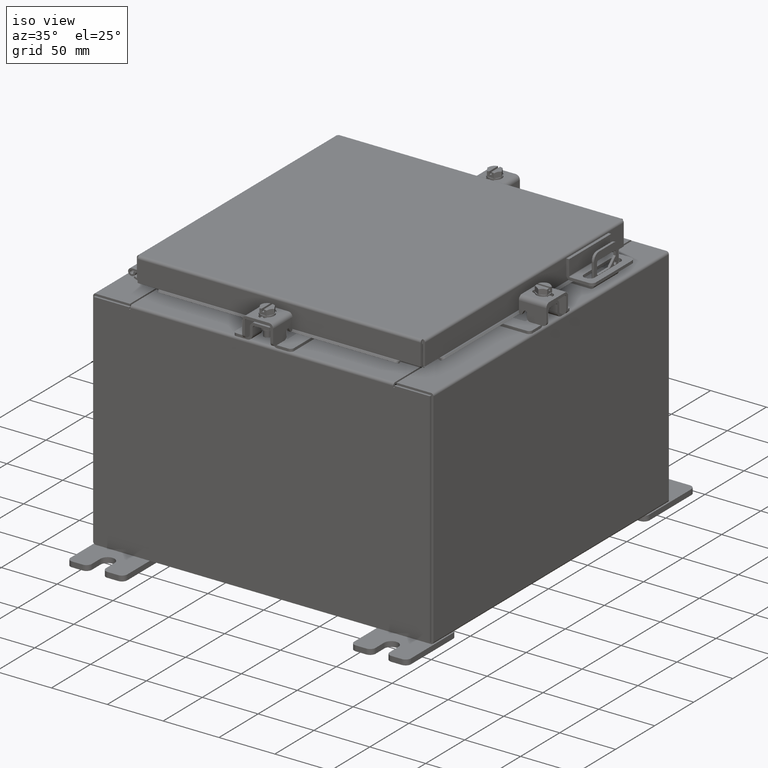
[diagram: clean part render]
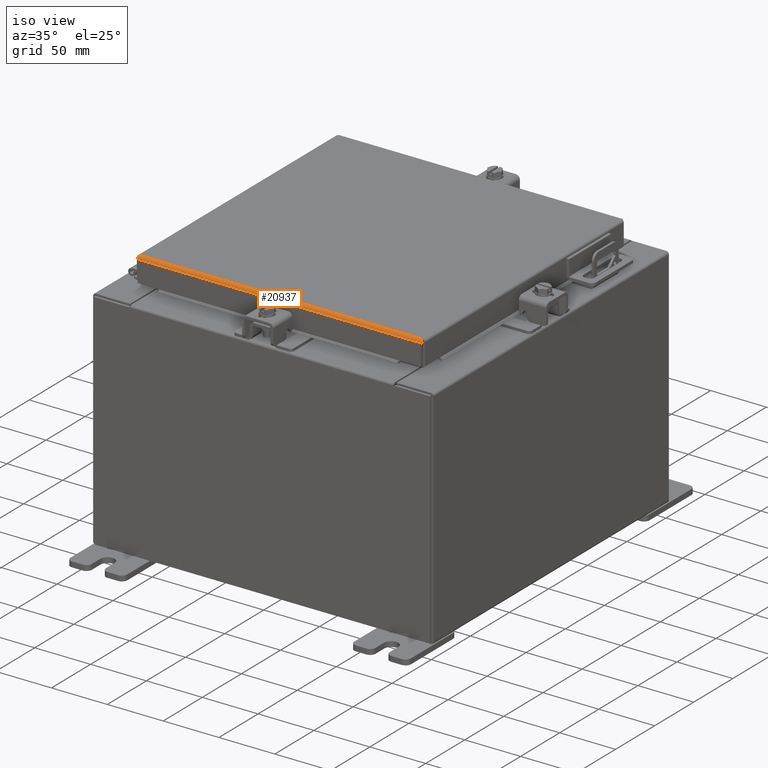
[diagram: same view with one face highlighted and labeled with its STEP entity id]
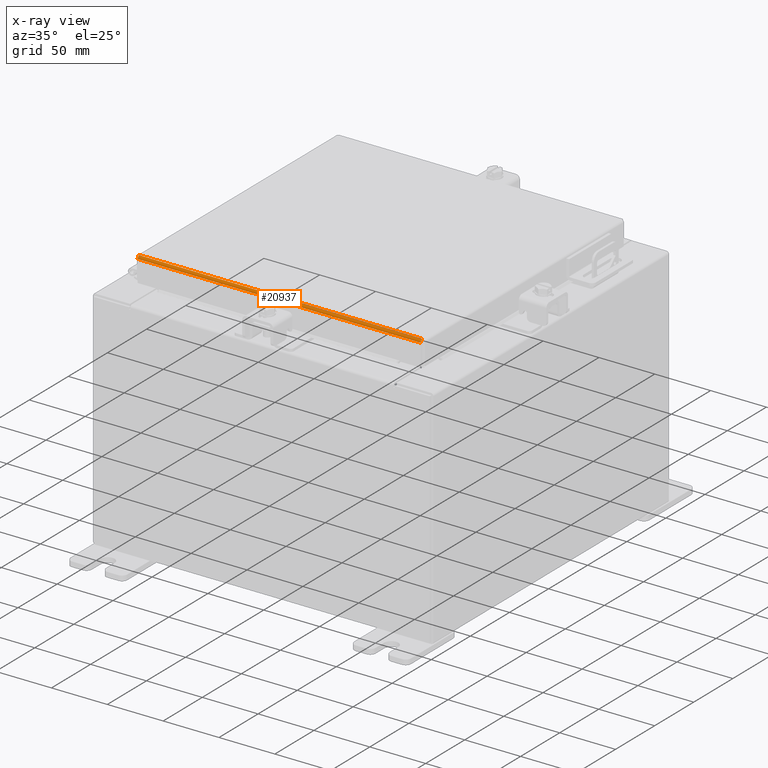
[diagram: x-ray of the same camera — body ghosted, the highlighted face saturated]
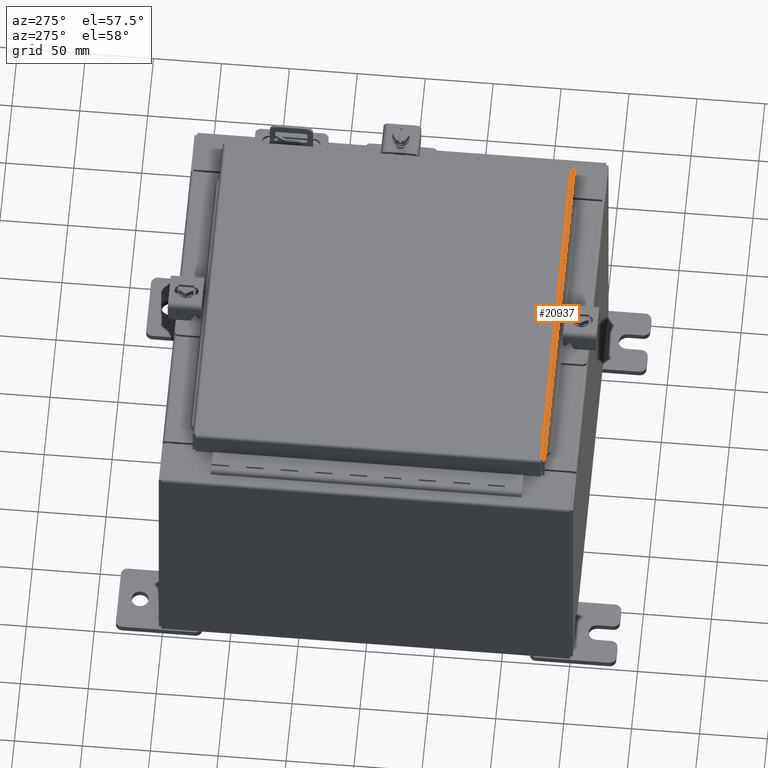
[diagram: same view with one face highlighted and labeled with its STEP entity id]
A machine part, iso view. The second image highlights one B-rep face of the part: STEP entity #20937.
The next image is the same camera in x-ray: the body ghosted, the highlighted face saturated — about 0% of this face is hidden behind the body in this view.
A second angle (auxiliary view) of the same face is appended — the face is thin or edge-on in the first view.
In plain terms, the highlighted cylindrical surface (edge-blend (fillet) strip) has radius 2.2276 mm, axis along (-1, 0, 0).
Its self-contained STEP definition (entity closure, byte-faithful):
#510 = CARTESIAN_POINT ( 'NONE',  ( 4.989157864376268000, -5.094000000000001200, -0.08770000000000026400 ) ) ;
#666 = FACE_OUTER_BOUND ( 'NONE', #12836, .T. ) ;
#835 = CARTESIAN_POINT ( 'NONE',  ( -4.989253042344914000, -5.093999999999999400, -0.07622009684500732900 ) ) ;
#2243 = CARTESIAN_POINT ( 'NONE',  ( 4.990109644062709300, -5.029255289458311600, -0.002282596256188889100 ) ) ;
#3801 = VERTEX_POINT ( 'NONE', #14323 ) ;
#3871 = ORIENTED_EDGE ( 'NONE', *, *, #5503, .F. ) ;
#4056 = EDGE_CURVE ( 'NONE', #3801, #4842, #16601, .T. ) ;
#4466 = CARTESIAN_POINT ( 'NONE',  ( -4.989538576250847500, -5.082931066258668200, -0.04353261542147219400 ) ) ;
#4842 = VERTEX_POINT ( 'NONE', #13645 ) ;
#5291 = CARTESIAN_POINT ( 'NONE',  ( -4.990300000000000400, -5.006300000000000400, 0.0000000000000000000 ) ) ;
#5503 = EDGE_CURVE ( 'NONE', #11569, #22752, #5747, .T. ) ;
#5747 = B_SPLINE_CURVE_WITH_KNOTS ( 'NONE', 3,
 ( #16700, #14874, #2243, #18526, #7688, #20345, #9505, #22168, #11327, #510 ),
 .UNSPECIFIED., .F., .F.,
 ( 4, 2, 2, 2, 4 ),
 ( 0.0000000000000000000, 0.2500000000000000000, 0.5000000000000000000, 0.7500000000000000000, 1.000000000000000000 ),
 .UNSPECIFIED. ) ;
#6295 = CARTESIAN_POINT ( 'NONE',  ( -4.989824110156779300, -5.060195747341802900, -0.01756921792167973100 ) ) ;
#7688 = CARTESIAN_POINT ( 'NONE',  ( 4.989824110156778400, -5.060195747341802900, -0.01756921792167973100 ) ) ;
#7752 = ORIENTED_EDGE ( 'NONE', *, *, #20437, .T. ) ;
#8096 = CARTESIAN_POINT ( 'NONE',  ( -4.990109644062712800, -5.029255289458308900, -0.002282596256188889100 ) ) ;
#8920 = DIRECTION ( 'NONE',  ( 1.000000000000000000, 3.412110487939144700E-031, -9.300620212429628900E-046 ) ) ;
#9505 = CARTESIAN_POINT ( 'NONE',  ( 4.989538576250846600, -5.082931066258668200, -0.04353261542147220100 ) ) ;
#9912 = CARTESIAN_POINT ( 'NONE',  ( -4.990300000000000400, -5.006300000000000400, 0.0000000000000000000 ) ) ;
#9997 = ORIENTED_EDGE ( 'NONE', *, *, #16670, .F. ) ;
#10559 = DIRECTION ( 'NONE',  ( 0.0000000000000000000, -1.000000000000000000, 2.725618009642215600E-015 ) ) ;
#11327 = CARTESIAN_POINT ( 'NONE',  ( 4.989253042344913100, -5.094000000000001200, -0.07622009684500735700 ) ) ;
#11569 = VERTEX_POINT ( 'NONE', #13711 ) ;
#12712 = LINE ( 'NONE', #5291, #21793 ) ;
#12836 = EDGE_LOOP ( 'NONE', ( #9997, #16829, #7752, #3871 ) ) ;
#13055 = CARTESIAN_POINT ( 'NONE',  ( -4.989157864376269700, -5.094000000000001200, -0.08770000000000026400 ) ) ;
#13359 = CYLINDRICAL_SURFACE ( 'NONE', #15275, 0.08770000000000026400 ) ;
#13645 = CARTESIAN_POINT ( 'NONE',  ( -4.990300000000000400, -5.006300000000000400, 0.0000000000000000000 ) ) ;
#13711 = CARTESIAN_POINT ( 'NONE',  ( 4.990299999999998600, -5.006300000000000400, 0.0000000000000000000 ) ) ;
#14170 = CARTESIAN_POINT ( 'NONE',  ( 4.989157864376268000, -5.094000000000001200, -0.08770000000000026400 ) ) ;
#14323 = CARTESIAN_POINT ( 'NONE',  ( -4.989157864376269700, -5.094000000000001200, -0.08770000000000026400 ) ) ;
#14874 = CARTESIAN_POINT ( 'NONE',  ( 4.990204822031354400, -5.017779903154994300, -1.698734580044647500E-016 ) ) ;
#15275 = AXIS2_PLACEMENT_3D ( 'NONE', #19581, #21419, #10559 ) ;
#15280 = CARTESIAN_POINT ( 'NONE',  ( -4.989348220313559100, -5.091717403743813500, -0.06474471054169118900 ) ) ;
#16601 = B_SPLINE_CURVE_WITH_KNOTS ( 'NONE', 3,
 ( #13055, #835, #15280, #4466, #17111, #6295, #18935, #8096, #20754, #9912 ),
 .UNSPECIFIED., .F., .F.,
 ( 4, 2, 2, 2, 4 ),
 ( 0.0000000000000000000, 0.2500000000000000000, 0.5000000000000000000, 0.7500000000000000000, 1.000000000000000000 ),
 .UNSPECIFIED. ) ;
#16670 = EDGE_CURVE ( 'NONE', #4842, #11569, #12712, .T. ) ;
#16700 = CARTESIAN_POINT ( 'NONE',  ( 4.990299999999998600, -5.006300000000000400, 0.0000000000000000000 ) ) ;
#16829 = ORIENTED_EDGE ( 'NONE', *, *, #4056, .F. ) ;
#17111 = CARTESIAN_POINT ( 'NONE',  ( -4.989633754219491700, -5.076430782078320500, -0.03380425265820005700 ) ) ;
#18218 = VECTOR ( 'NONE', #8920, 39.37007874015748100 ) ;
#18526 = CARTESIAN_POINT ( 'NONE',  ( 4.989919288125420800, -5.050467384578527500, -0.01106893374133172600 ) ) ;
#18935 = CARTESIAN_POINT ( 'NONE',  ( -4.989919288125423500, -5.050467384578530200, -0.01106893374133172600 ) ) ;
#19581 = CARTESIAN_POINT ( 'NONE',  ( -4.990300000000000400, -5.006300000000000400, -0.08770000000000026400 ) ) ;
#19760 = CARTESIAN_POINT ( 'NONE',  ( 5.077999999999998500, -5.094000000000001200, -0.08770000000000026400 ) ) ;
#20345 = CARTESIAN_POINT ( 'NONE',  ( 4.989633754219490000, -5.076430782078320500, -0.03380425265820005700 ) ) ;
#20437 = EDGE_CURVE ( 'NONE', #3801, #22752, #23004, .T. ) ;
#20754 = CARTESIAN_POINT ( 'NONE',  ( -4.990204822031355300, -5.017779903154994300, -1.695399804661757400E-016 ) ) ;
#20937 = ADVANCED_FACE ( 'NONE', ( #666 ), #13359, .T. ) ;
#21419 = DIRECTION ( 'NONE',  ( -1.000000000000000000, 0.0000000000000000000, 0.0000000000000000000 ) ) ;
#21793 = VECTOR ( 'NONE', #23368, 39.37007874015748100 ) ;
#22168 = CARTESIAN_POINT ( 'NONE',  ( 4.989348220313558200, -5.091717403743811800, -0.06474471054169118900 ) ) ;
#22752 = VERTEX_POINT ( 'NONE', #14170 ) ;
#23004 = LINE ( 'NONE', #19760, #18218 ) ;
#23368 = DIRECTION ( 'NONE',  ( 1.000000000000000000, -0.0000000000000000000, -0.0000000000000000000 ) ) ;